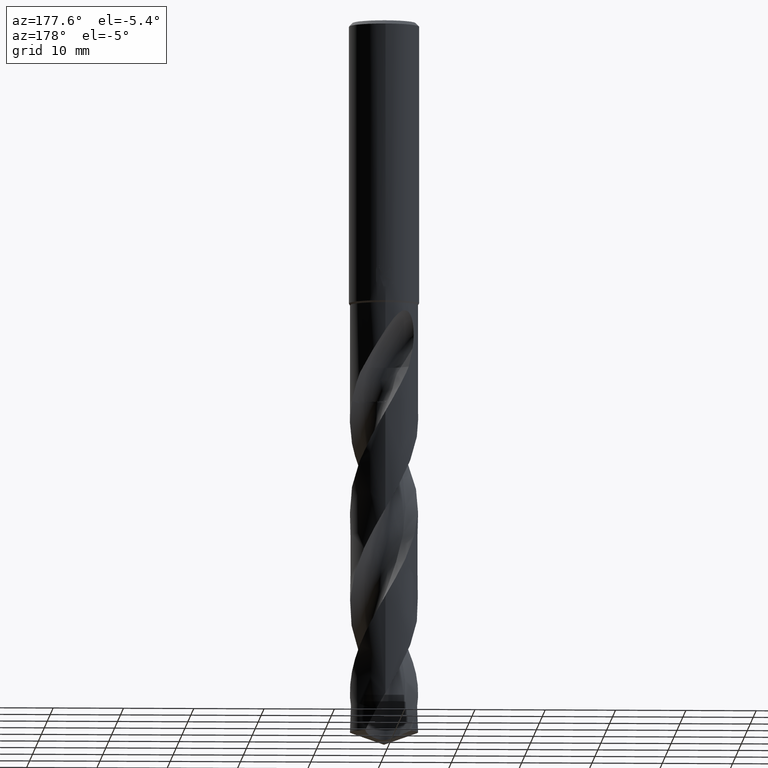
[diagram: clean part render]
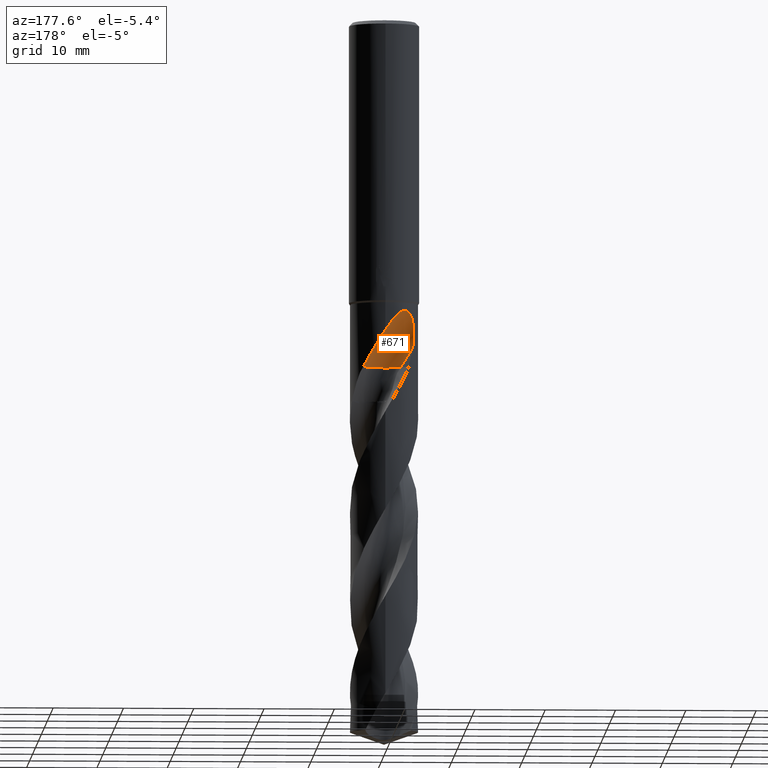
[diagram: same view with one face highlighted and labeled with its STEP entity id]
A machine part, auxiliary view. The second image highlights one B-rep face of the part: STEP entity #671.
In plain terms, the highlighted face is a SurfaceOfRevolution surface.
Its self-contained STEP definition (entity closure, byte-faithful):
#361=VERTEX_POINT('',#897);
#421=EDGE_CURVE('',#589,#361,#965,.T.);
#425=VERTEX_POINT('',#970);
#479=VERTEX_POINT('',#1028);
#521=EDGE_CURVE('',#539,#479,#1070,.T.);
#527=EDGE_CURVE('',#425,#361,#1076,.T.);
#539=VERTEX_POINT('',#1089);
#589=VERTEX_POINT('',#1142);
#649=EDGE_CURVE('',#539,#425,#1211,.T.);
#671=ADVANCED_FACE('',(#1237),#1238,.F.);
#681=EDGE_CURVE('',#479,#589,#1249,.T.);
#897=CARTESIAN_POINT('',(-3.94616449197908,2.81962511732384,-46.6824358902875));
#965=CIRCLE('',#3700,21.074510499993);
#970=CARTESIAN_POINT('',(-1.43514920406635E-012,4.85,-44.1827605516052));
#1028=CARTESIAN_POINT('',(-0.537738803045658,1.50001453718699,-49.3382));
#1070=CIRCLE('',#4304,3.23333333);
#1076=B_SPLINE_CURVE_WITH_KNOTS('',3,(#4313,#4314,#4315,#4316,#4317,#4318,#4319,#4320,#4321,#4322,#4323,#4324,#4325,#4326,#4327,#4328,#4329,#4330,#4331,#4332,#4333,#4334,#4335,#4336,#4337,#4338,#4339,#4340,#4341,#4342),.UNSPECIFIED.,.F.,.F.,(4,2,2,2,2,2,2,2,2,2,2,2,2,2,4),(0.0,2.3762271201191,3.67370289534617,4.84888937745357,6.2141731588642,7.85419155137378,9.27562340655728,9.91976791871792,10.3905589756972,10.8360649855321,11.4012159121932,12.2280546353878,13.4035031014055,14.1727071112507,14.9810882626723),.UNSPECIFIED.);
#1089=CARTESIAN_POINT('',(3.09049055902257,3.73782933058645,-49.3382));
#1142=CARTESIAN_POINT('',(-2.28631192340877,2.40202140659123,-49.3382));
#1211=B_SPLINE_CURVE_WITH_KNOTS('',3,(#6237,#6238,#6239,#6240,#6241,#6242,#6243,#6244,#6245,#6246,#6247,#6248,#6249,#6250,#6251,#6252,#6253,#6254,#6255,#6256,#6257,#6258,#6259,#6260,#6261,#6262,#6263,#6264,#6265,#6266),.UNSPECIFIED.,.F.,.F.,(4,2,2,2,2,2,2,2,2,2,2,2,2,2,4),(0.0,2.3762271201191,3.67370289534617,4.84888937745357,6.2141731588642,7.85419155137378,9.27562340655728,9.91976791871792,10.3905589756972,10.8360649855321,11.4012159121932,12.2280546353878,13.4035031014055,14.1727071112507,14.9810882626723),.UNSPECIFIED.);
#1237=FACE_OUTER_BOUND('',#7047,.T.);
#1238=SURFACE_OF_REVOLUTION('',#7048,#7049);
#1249=CIRCLE('',#7118,3.23333333);
#3700=AXIS2_PLACEMENT_3D('',#8970,#8971,#8972);
#4304=AXIS2_PLACEMENT_3D('',#9055,#9056,#9057);
#4313=CARTESIAN_POINT('',(3.09049055902257,3.73782933058645,-49.3382));
#4314=CARTESIAN_POINT('',(2.77056708536733,4.0023466178929,-48.6636160535005));
#4315=CARTESIAN_POINT('',(2.40272764155632,4.23748409626241,-48.0346860806347));
#4316=CARTESIAN_POINT('',(1.76132534708756,4.52569442773003,-46.9840156378744));
#4317=CARTESIAN_POINT('',(1.53051864094097,4.60860165937861,-46.6143544124009));
#4318=CARTESIAN_POINT('',(1.08370604075308,4.73250936551243,-45.8987862125342));
#4319=CARTESIAN_POINT('',(0.869695147821154,4.77628566222978,-45.5562145904864));
#4320=CARTESIAN_POINT('',(0.406451737971348,4.83946563587525,-44.8178819027599));
#4321=CARTESIAN_POINT('',(0.153349740875114,4.85429853304564,-44.4163415299651));
#4322=CARTESIAN_POINT('',(-0.408725098925497,4.84247540513282,-43.5573140542112));
#4323=CARTESIAN_POINT('',(-0.741978728853477,4.80590693807448,-43.0685180026716));
#4324=CARTESIAN_POINT('',(-1.3846152256381,4.65822612739052,-42.2625271078447));
#4325=CARTESIAN_POINT('',(-1.74016020785623,4.54571205087707,-41.8692351948196));
#4326=CARTESIAN_POINT('',(-2.27827412978385,4.28563935458489,-41.5009568018169));
#4327=CARTESIAN_POINT('',(-2.45639347092479,4.18745589055989,-41.4099404422398));
#4328=CARTESIAN_POINT('',(-2.76849949073742,3.98529373506698,-41.3400236216452));
#4329=CARTESIAN_POINT('',(-2.89651168855474,3.89322757879832,-41.3387181441813));
#4330=CARTESIAN_POINT('',(-3.13494131523774,3.70359052714926,-41.3999100876274));
#4331=CARTESIAN_POINT('',(-3.23921853421569,3.6119996228023,-41.4572829292435));
#4332=CARTESIAN_POINT('',(-3.45142151537231,3.41128532100654,-41.636795916453));
#4333=CARTESIAN_POINT('',(-3.54959621632099,3.30727014005277,-41.7693339454723));
#4334=CARTESIAN_POINT('',(-3.75068974429631,3.08014539699884,-42.1322642060482));
#4335=CARTESIAN_POINT('',(-3.84680844419931,2.95645974092103,-42.40145119891));
#4336=CARTESIAN_POINT('',(-4.02755609437499,2.70810054110866,-43.1546064839389));
#4337=CARTESIAN_POINT('',(-4.09290054135661,2.60231150585032,-43.690993602578));
#4338=CARTESIAN_POINT('',(-4.12524333707655,2.55057832804423,-44.6837140299466));
#4339=CARTESIAN_POINT('',(-4.11763861617625,2.56318765864804,-45.0790642950396));
#4340=CARTESIAN_POINT('',(-4.06392553116516,2.6475718127601,-45.8814278287354));
#4341=CARTESIAN_POINT('',(-4.01596611785002,2.72193528763622,-46.2854210993));
#4342=CARTESIAN_POINT('',(-3.94616449197908,2.81962511732384,-46.6824358902875));
#6237=CARTESIAN_POINT('',(3.09049055902257,3.73782933058645,-49.3382));
#6238=CARTESIAN_POINT('',(2.77056708536733,4.0023466178929,-48.6636160535005));
#6239=CARTESIAN_POINT('',(2.40272764155632,4.23748409626241,-48.0346860806347));
#6240=CARTESIAN_POINT('',(1.76132534708756,4.52569442773003,-46.9840156378744));
#6241=CARTESIAN_POINT('',(1.53051864094097,4.60860165937861,-46.6143544124009));
#6242=CARTESIAN_POINT('',(1.08370604075308,4.73250936551243,-45.8987862125342));
#6243=CARTESIAN_POINT('',(0.869695147821154,4.77628566222978,-45.5562145904864));
#6244=CARTESIAN_POINT('',(0.406451737971348,4.83946563587525,-44.8178819027599));
#6245=CARTESIAN_POINT('',(0.153349740875114,4.85429853304564,-44.4163415299651));
#6246=CARTESIAN_POINT('',(-0.408725098925497,4.84247540513282,-43.5573140542112));
#6247=CARTESIAN_POINT('',(-0.741978728853477,4.80590693807448,-43.0685180026716));
#6248=CARTESIAN_POINT('',(-1.3846152256381,4.65822612739052,-42.2625271078447));
#6249=CARTESIAN_POINT('',(-1.74016020785623,4.54571205087707,-41.8692351948196));
#6250=CARTESIAN_POINT('',(-2.27827412978385,4.28563935458489,-41.5009568018169));
#6251=CARTESIAN_POINT('',(-2.45639347092479,4.18745589055989,-41.4099404422398));
#6252=CARTESIAN_POINT('',(-2.76849949073742,3.98529373506698,-41.3400236216452));
#6253=CARTESIAN_POINT('',(-2.89651168855474,3.89322757879832,-41.3387181441813));
#6254=CARTESIAN_POINT('',(-3.13494131523774,3.70359052714926,-41.3999100876274));
#6255=CARTESIAN_POINT('',(-3.23921853421569,3.6119996228023,-41.4572829292435));
#6256=CARTESIAN_POINT('',(-3.45142151537231,3.41128532100654,-41.636795916453));
#6257=CARTESIAN_POINT('',(-3.54959621632099,3.30727014005277,-41.7693339454723));
#6258=CARTESIAN_POINT('',(-3.75068974429631,3.08014539699884,-42.1322642060482));
#6259=CARTESIAN_POINT('',(-3.84680844419931,2.95645974092103,-42.40145119891));
#6260=CARTESIAN_POINT('',(-4.02755609437499,2.70810054110866,-43.1546064839389));
#6261=CARTESIAN_POINT('',(-4.09290054135661,2.60231150585032,-43.690993602578));
#6262=CARTESIAN_POINT('',(-4.12524333707655,2.55057832804423,-44.6837140299466));
#6263=CARTESIAN_POINT('',(-4.11763861617625,2.56318765864804,-45.0790642950396));
#6264=CARTESIAN_POINT('',(-4.06392553116516,2.6475718127601,-45.8814278287354));
#6265=CARTESIAN_POINT('',(-4.01596611785002,2.72193528763622,-46.2854210993));
#6266=CARTESIAN_POINT('',(-3.94616449197908,2.81962511732384,-46.6824358902875));
#7047=EDGE_LOOP('',(#9220,#9221,#9222,#9223,#9224));
#7048=(B_SPLINE_CURVE(3,(#9226,#9227,#9228,#9229,#9230,#9231,#9232,#9233,#9234),.UNSPECIFIED.,.F.,.F.)B_SPLINE_CURVE_WITH_KNOTS((4,1,3,1,4),(-2.85637041554522,-2.55358155506247,-2.25079269457971,-1.94800383409696,-1.6452149736142),.UNSPECIFIED.)RATIONAL_B_SPLINE_CURVE((1.09168109403244,1.03056036467748,0.969439635322518,1.03056036467748,1.09168109403244,1.03056036467748,0.969439635322519,1.03056036467748,1.09168109403244))BOUNDED_CURVE()REPRESENTATION_ITEM('')GEOMETRIC_REPRESENTATION_ITEM()CURVE());
#7049=AXIS1_PLACEMENT('',#9241,#9242);
#7118=AXIS2_PLACEMENT_3D('',#9254,#9255,#9256);
#8970=CARTESIAN_POINT('',(-1.64408947301305,23.44166665,-50.3657559206331));
#8971=DIRECTION('',(-0.847998304005088,-1.59983506649107E-017,-0.52999894000318));
#8972=DIRECTION('',(-0.0535598124222527,-0.994880693106527,0.0856956998756044));
#9055=CARTESIAN_POINT('',(1.79814726900408E-005,4.68831534852731,-49.3382));
#9056=DIRECTION('',(0.0,0.0,-1.0));
#9057=DIRECTION('',(0.707101219884461,0.707112342444896,0.0));
#9220=ORIENTED_EDGE('',*,*,#649,.F.);
#9221=ORIENTED_EDGE('',*,*,#521,.T.);
#9222=ORIENTED_EDGE('',*,*,#681,.T.);
#9223=ORIENTED_EDGE('',*,*,#421,.T.);
#9224=ORIENTED_EDGE('',*,*,#527,.F.);
#9226=CARTESIAN_POINT('',(-2.28631192340877,2.40202140659123,-49.3382));
#9227=CARTESIAN_POINT('',(-1.83848802673091,1.95419046573325,-49.3382));
#9228=CARTESIAN_POINT('',(-0.674014681318386,1.31786530777981,-49.3382));
#9229=CARTESIAN_POINT('',(0.645619671552773,1.4574111910692,-49.3382));
#9230=CARTESIAN_POINT('',(1.23123035533287,1.69857279885143,-49.3382));
#9231=CARTESIAN_POINT('',(1.81684103911296,1.93973440663365,-49.3382));
#9232=CARTESIAN_POINT('',(2.85205224981366,2.76994259019986,-49.3382));
#9233=CARTESIAN_POINT('',(3.23073072135909,4.04175645001139,-49.3382));
#9234=CARTESIAN_POINT('',(3.23332420102787,4.67507474904333,-49.3382));
#9241=CARTESIAN_POINT('',(-1.64408947301305,23.44166665,-50.3657559206331));
#9242=DIRECTION('',(0.847998304005088,-0.0,0.52999894000318));
#9254=CARTESIAN_POINT('',(1.79814726900408E-005,4.68831534852731,-49.3382));
#9255=DIRECTION('',(0.0,0.0,-1.0));
#9256=DIRECTION('',(0.707101219884461,0.707112342444896,0.0));